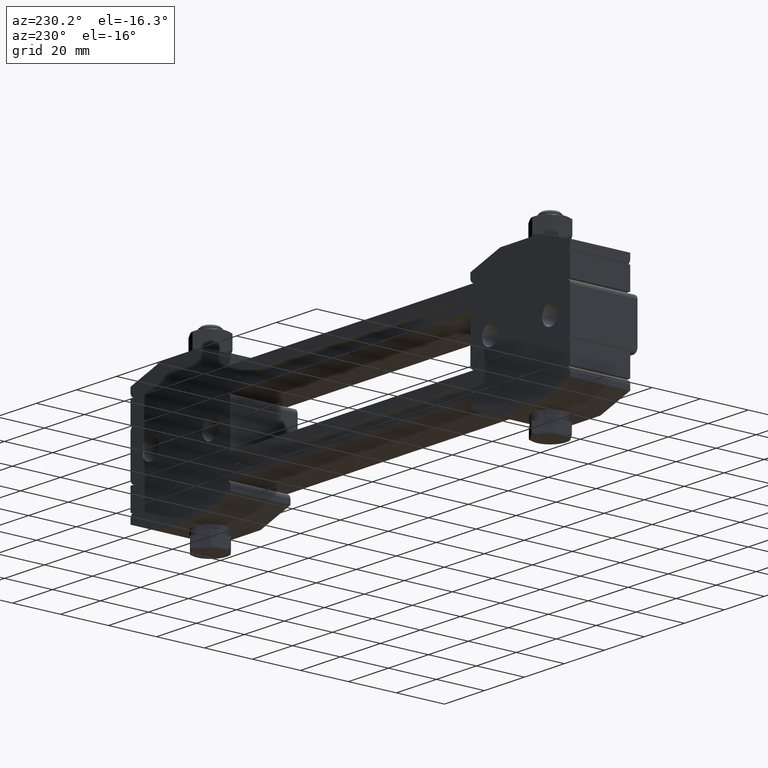
[diagram: clean part render]
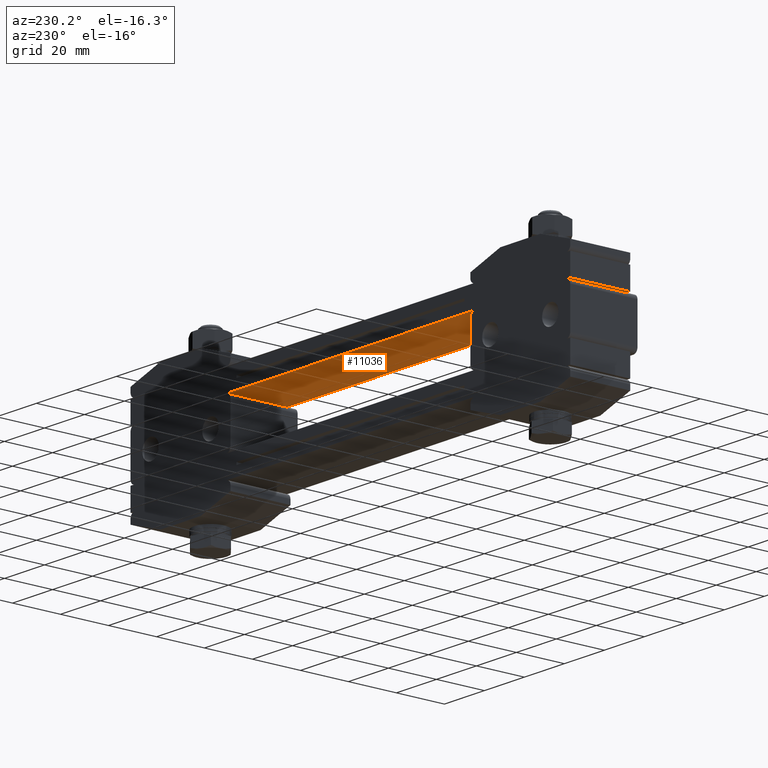
[diagram: same view with one face highlighted and labeled with its STEP entity id]
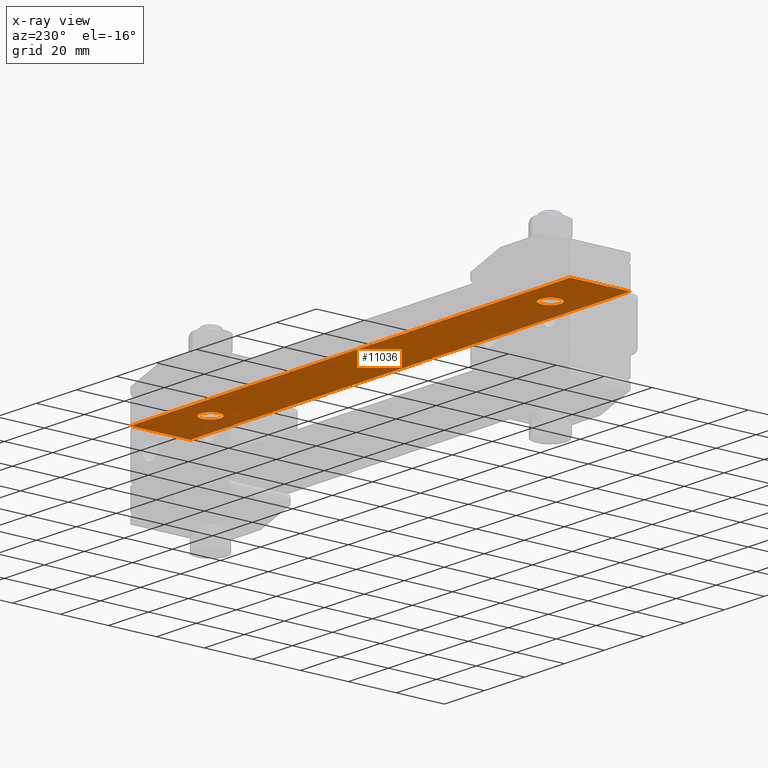
[diagram: x-ray of the same camera — body ghosted, the highlighted face saturated]
A machine part, auxiliary view. The second image highlights one B-rep face of the part: STEP entity #11036.
The next image is the same camera in x-ray: the body ghosted, the highlighted face saturated — about 14% of this face is hidden behind the body in this view.
In plain terms, the highlighted planar face has unit normal (0, 0, 1).
Its self-contained STEP definition (entity closure, byte-faithful):
#739 = AXIS2_PLACEMENT_3D ( 'NONE', #7249, #4310, #2084 ) ;
#765 = CARTESIAN_POINT ( 'NONE',  ( 85.00000000000000000, 1.951563910473909900E-014, 24.00000000000000000 ) ) ;
#936 = LINE ( 'NONE', #11754, #15808 ) ;
#985 = VECTOR ( 'NONE', #9980, 1000.000000000000000 ) ;
#1296 = ORIENTED_EDGE ( 'NONE', *, *, #11579, .F. ) ;
#1714 = CARTESIAN_POINT ( 'NONE',  ( -80.75000000000000000, -7.821940206037071300E-016, 24.00000000000000000 ) ) ;
#1965 = DIRECTION ( 'NONE',  ( 0.0000000000000000000, 1.000000000000000000, 0.0000000000000000000 ) ) ;
#2084 = DIRECTION ( 'NONE',  ( -1.000000000000000000, 0.0000000000000000000, 0.0000000000000000000 ) ) ;
#2176 = EDGE_CURVE ( 'NONE', #8010, #15465, #13132, .T. ) ;
#2522 = ORIENTED_EDGE ( 'NONE', *, *, #13346, .F. ) ;
#2923 = DIRECTION ( 'NONE',  ( 0.0000000000000000000, -1.000000000000000000, 0.0000000000000000000 ) ) ;
#3156 = CARTESIAN_POINT ( 'NONE',  ( -110.0000000000000000, -12.50000000000000000, 24.00000000000000000 ) ) ;
#3182 = CARTESIAN_POINT ( 'NONE',  ( 80.75000000000000000, 1.951563910473909900E-014, 24.00000000000000000 ) ) ;
#4156 = CARTESIAN_POINT ( 'NONE',  ( -89.25000000000001400, -1.302668910241332000E-015, 24.00000000000000000 ) ) ;
#4310 = DIRECTION ( 'NONE',  ( 0.0000000000000000000, 0.0000000000000000000, -1.000000000000000000 ) ) ;
#4521 = CIRCLE ( 'NONE', #14374, 4.250000000000003600 ) ;
#4656 = ORIENTED_EDGE ( 'NONE', *, *, #5165, .F. ) ;
#5165 = EDGE_CURVE ( 'NONE', #18702, #9152, #10638, .T. ) ;
#5580 = CARTESIAN_POINT ( 'NONE',  ( 110.0000000000000000, -12.50000000000000000, 24.00000000000000000 ) ) ;
#6387 = DIRECTION ( 'NONE',  ( 0.0000000000000000000, 0.0000000000000000000, -1.000000000000000000 ) ) ;
#6455 = DIRECTION ( 'NONE',  ( -1.000000000000000000, 0.0000000000000000000, 0.0000000000000000000 ) ) ;
#6562 = EDGE_LOOP ( 'NONE', ( #1296, #13831, #21951, #16172 ) ) ;
#6575 = DIRECTION ( 'NONE',  ( 1.000000000000000000, 0.0000000000000000000, 0.0000000000000000000 ) ) ;
#6750 = ORIENTED_EDGE ( 'NONE', *, *, #13568, .F. ) ;
#6963 = CIRCLE ( 'NONE', #739, 4.250000000000003600 ) ;
#7035 = CARTESIAN_POINT ( 'NONE',  ( -110.0000000000000000, -12.50000000000000000, 24.00000000000000000 ) ) ;
#7249 = CARTESIAN_POINT ( 'NONE',  ( -85.00000000000000000, -1.302668910241332000E-015, 24.00000000000000000 ) ) ;
#8010 = VERTEX_POINT ( 'NONE', #7035 ) ;
#8489 = DIRECTION ( 'NONE',  ( 0.0000000000000000000, 0.0000000000000000000, 1.000000000000000000 ) ) ;
#8634 = AXIS2_PLACEMENT_3D ( 'NONE', #16921, #6387, #6455 ) ;
#8871 = LINE ( 'NONE', #13180, #11068 ) ;
#9152 = VERTEX_POINT ( 'NONE', #3182 ) ;
#9916 = VECTOR ( 'NONE', #1965, 1000.000000000000000 ) ;
#9980 = DIRECTION ( 'NONE',  ( 1.000000000000000000, 0.0000000000000000000, 0.0000000000000000000 ) ) ;
#10328 = VERTEX_POINT ( 'NONE', #4156 ) ;
#10638 = CIRCLE ( 'NONE', #17746, 4.250000000000003600 ) ;
#10788 = AXIS2_PLACEMENT_3D ( 'NONE', #3156, #8489, #6575 ) ;
#11036 = ADVANCED_FACE ( 'NONE', ( #15852, #16686, #11708 ), #13715, .F. ) ;
#11068 = VECTOR ( 'NONE', #14944, 1000.000000000000000 ) ;
#11303 = DIRECTION ( 'NONE',  ( 0.0000000000000000000, 0.0000000000000000000, -1.000000000000000000 ) ) ;
#11579 = EDGE_CURVE ( 'NONE', #19821, #8010, #936, .T. ) ;
#11640 = CIRCLE ( 'NONE', #8634, 4.250000000000003600 ) ;
#11708 = FACE_OUTER_BOUND ( 'NONE', #6562, .T. ) ;
#11754 = CARTESIAN_POINT ( 'NONE',  ( -110.0000000000000000, 12.50000000000000000, 24.00000000000000000 ) ) ;
#12982 = EDGE_LOOP ( 'NONE', ( #13782, #2522 ) ) ;
#13132 = LINE ( 'NONE', #20256, #985 ) ;
#13179 = DIRECTION ( 'NONE',  ( -1.000000000000000000, 0.0000000000000000000, 0.0000000000000000000 ) ) ;
#13180 = CARTESIAN_POINT ( 'NONE',  ( -110.0000000000000000, 12.50000000000000000, 24.00000000000000000 ) ) ;
#13346 = EDGE_CURVE ( 'NONE', #18125, #10328, #4521, .T. ) ;
#13568 = EDGE_CURVE ( 'NONE', #9152, #18702, #11640, .T. ) ;
#13715 = PLANE ( 'NONE',  #10788 ) ;
#13782 = ORIENTED_EDGE ( 'NONE', *, *, #19265, .F. ) ;
#13831 = ORIENTED_EDGE ( 'NONE', *, *, #19297, .F. ) ;
#14293 = CARTESIAN_POINT ( 'NONE',  ( 110.0000000000000000, 12.50000000000000000, 24.00000000000000000 ) ) ;
#14374 = AXIS2_PLACEMENT_3D ( 'NONE', #19168, #19080, #20948 ) ;
#14944 = DIRECTION ( 'NONE',  ( -1.000000000000000000, 5.519574696289839900E-017, 0.0000000000000000000 ) ) ;
#15296 = EDGE_CURVE ( 'NONE', #15465, #19140, #18763, .T. ) ;
#15465 = VERTEX_POINT ( 'NONE', #5580 ) ;
#15808 = VECTOR ( 'NONE', #2923, 1000.000000000000000 ) ;
#15852 = FACE_BOUND ( 'NONE', #12982, .T. ) ;
#16014 = CARTESIAN_POINT ( 'NONE',  ( 110.0000000000000000, 12.50000000000000000, 24.00000000000000000 ) ) ;
#16172 = ORIENTED_EDGE ( 'NONE', *, *, #2176, .F. ) ;
#16218 = CARTESIAN_POINT ( 'NONE',  ( -110.0000000000000000, 12.50000000000000000, 24.00000000000000000 ) ) ;
#16686 = FACE_BOUND ( 'NONE', #20829, .T. ) ;
#16921 = CARTESIAN_POINT ( 'NONE',  ( 85.00000000000000000, 1.951563910473909900E-014, 24.00000000000000000 ) ) ;
#17746 = AXIS2_PLACEMENT_3D ( 'NONE', #765, #11303, #13179 ) ;
#18125 = VERTEX_POINT ( 'NONE', #1714 ) ;
#18702 = VERTEX_POINT ( 'NONE', #21086 ) ;
#18763 = LINE ( 'NONE', #14293, #9916 ) ;
#19080 = DIRECTION ( 'NONE',  ( 0.0000000000000000000, 0.0000000000000000000, -1.000000000000000000 ) ) ;
#19140 = VERTEX_POINT ( 'NONE', #16014 ) ;
#19168 = CARTESIAN_POINT ( 'NONE',  ( -85.00000000000000000, -1.302668910241332000E-015, 24.00000000000000000 ) ) ;
#19265 = EDGE_CURVE ( 'NONE', #10328, #18125, #6963, .T. ) ;
#19297 = EDGE_CURVE ( 'NONE', #19140, #19821, #8871, .T. ) ;
#19821 = VERTEX_POINT ( 'NONE', #16218 ) ;
#20256 = CARTESIAN_POINT ( 'NONE',  ( -110.0000000000000000, -12.50000000000000000, 24.00000000000000000 ) ) ;
#20829 = EDGE_LOOP ( 'NONE', ( #6750, #4656 ) ) ;
#20948 = DIRECTION ( 'NONE',  ( -1.000000000000000000, 0.0000000000000000000, 0.0000000000000000000 ) ) ;
#21086 = CARTESIAN_POINT ( 'NONE',  ( 89.25000000000001400, 2.003611399437672300E-014, 24.00000000000000000 ) ) ;
#21951 = ORIENTED_EDGE ( 'NONE', *, *, #15296, .F. ) ;